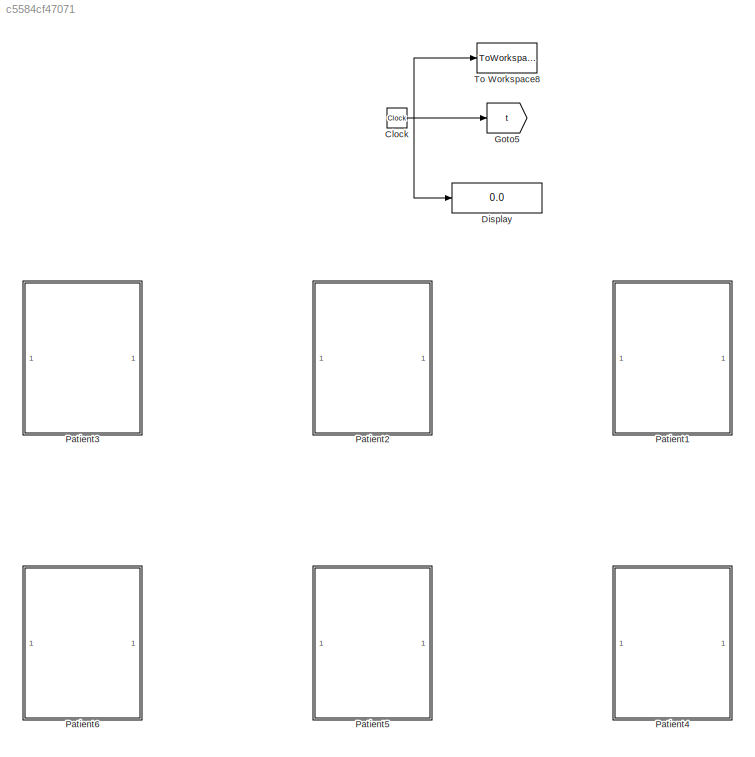
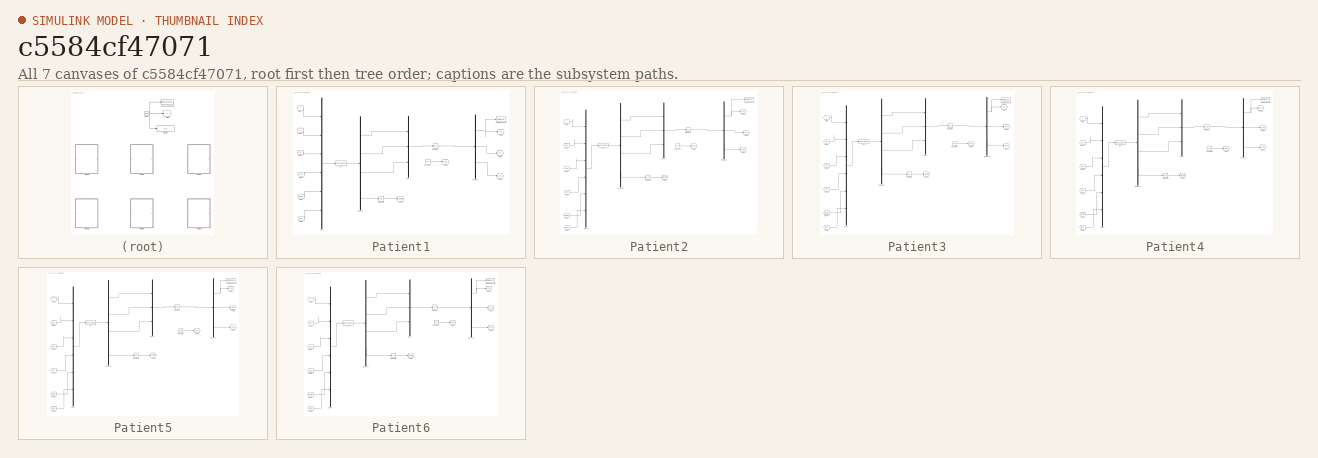
[diagram: thumbnail index - all 7 canvases of the model, root first then tree order]
MODEL slx_c5584cf47071
KIND model
CONFIG AbsTol = auto
CONFIG EnableMultiTasking = off
CONFIG FixedStep = auto
CONFIG MaxStep = auto
CONFIG MinStep = auto
CONFIG RelTol = 1e-3
CONFIG SampleTimeConstraint = Unconstrained
CONFIG SolverName = VariableStepAuto
CONFIG StartTime = 0.0
CONFIG StopTime = 90000
BLOCK [Clock] Clock
BLOCK [Display] Display
  Decimation = 1
  Ports = [1]
BLOCK [Goto] Goto5
  GotoTag = t
  TagVisibility = global
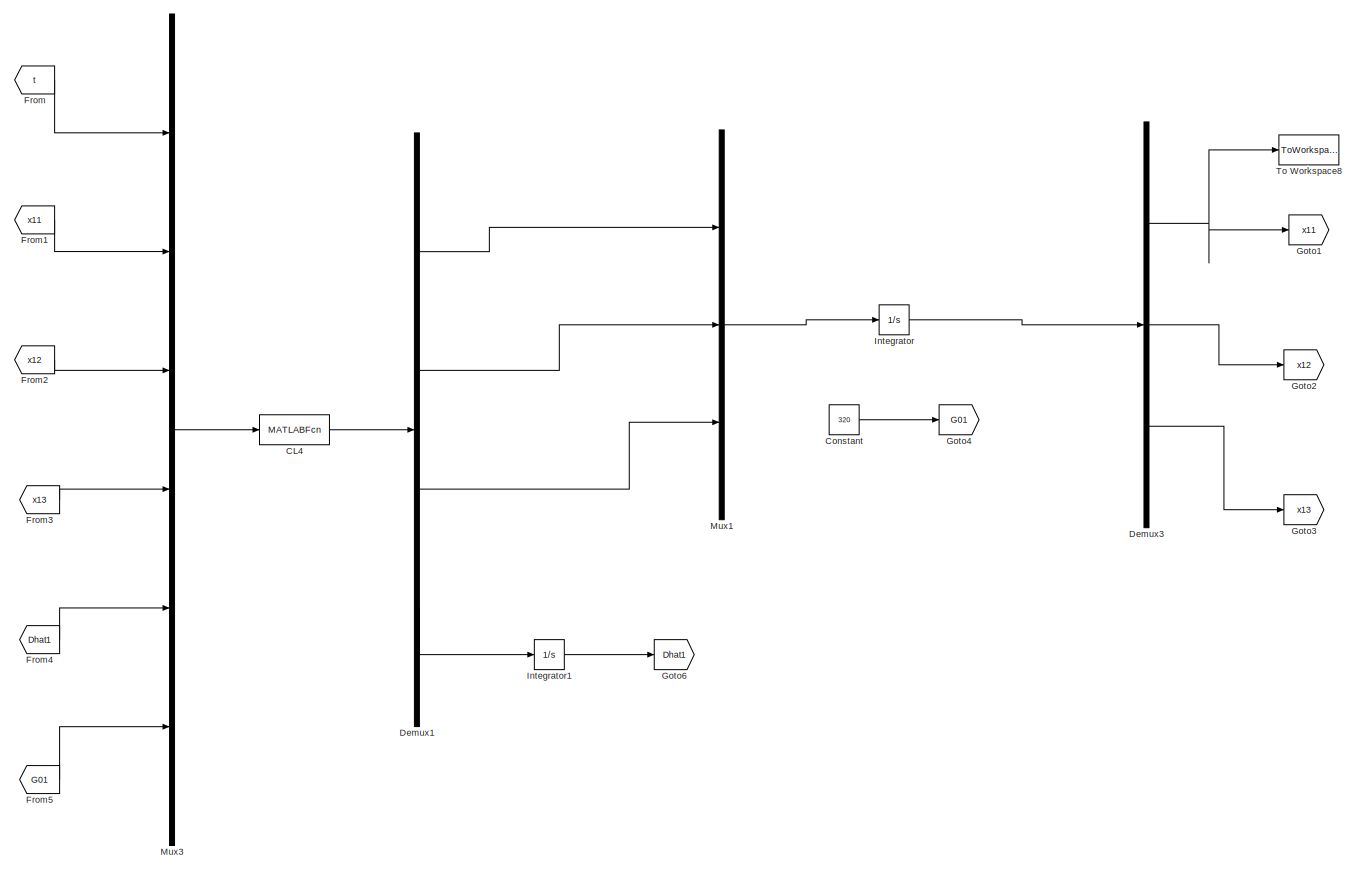
[diagram: Patient1 - part 1/1, most of the canvas]
BLOCK [SubSystem] Patient1
  Ports = []
  RequestExecContextInheritance = off
BLOCK [MATLABFcn] Patient1/CL4
  MATLABFcn = control_law4adaptive
  OutputDimensions = 4
  Ports = [1, 1]
BLOCK [Constant] Patient1/Constant
  Value = 320
BLOCK [Demux] Patient1/Demux1
  Ports = [1, 4]
BLOCK [Demux] Patient1/Demux3
  Outputs = 3
  Ports = [1, 3]
BLOCK [From] Patient1/From
  GotoTag = t
  TagVisibility = global
BLOCK [From] Patient1/From1
  GotoTag = x11
  TagVisibility = global
BLOCK [From] Patient1/From2
  GotoTag = x12
  TagVisibility = global
BLOCK [From] Patient1/From3
  GotoTag = x13
  TagVisibility = global
BLOCK [From] Patient1/From4
  GotoTag = Dhat1
  TagVisibility = global
BLOCK [From] Patient1/From5
  GotoTag = G01
  TagVisibility = global
BLOCK [Goto] Patient1/Goto1
  GotoTag = x11
  TagVisibility = global
BLOCK [Goto] Patient1/Goto2
  GotoTag = x12
  TagVisibility = global
BLOCK [Goto] Patient1/Goto3
  GotoTag = x13
  TagVisibility = global
BLOCK [Goto] Patient1/Goto4
  GotoTag = G01
  TagVisibility = global
BLOCK [Goto] Patient1/Goto6
  GotoTag = Dhat1
  TagVisibility = global
BLOCK [Integrator] Patient1/Integrator
  InitialCondition = [320;0;100]
  Ports = [1, 1]
BLOCK [Integrator] Patient1/Integrator1
  Ports = [1, 1]
BLOCK [Mux] Patient1/Mux1
  DisplayOption = bar
  Inputs = 3
  Ports = [3, 1]
BLOCK [Mux] Patient1/Mux3
  DisplayOption = bar
  Inputs = 6
  Ports = [6, 1]
BLOCK [ToWorkspace] Patient1/To Workspace8
  MaxDataPoints = inf
  Ports = [1]
  SampleTime = 10
  Save2DSignal = 2-D array (concatenate along first dimension)
  VariableName = x11
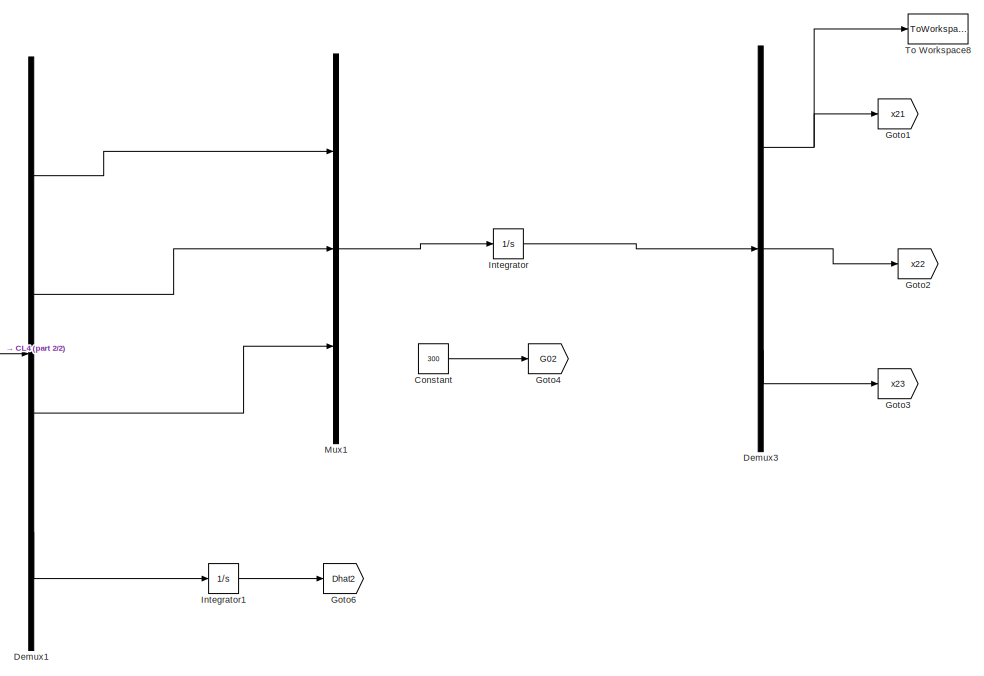
[diagram: Patient2 - part 1/2, central region]
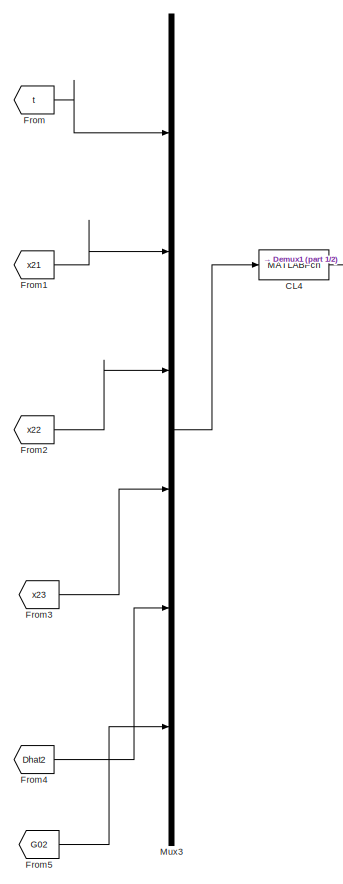
[diagram: Patient2 - part 2/2, left side, full height]
BLOCK [SubSystem] Patient2
  Ports = []
  RequestExecContextInheritance = off
BLOCK [MATLABFcn] Patient2/CL4
  MATLABFcn = control_law4adaptive
  OutputDimensions = 4
  Ports = [1, 1]
BLOCK [Constant] Patient2/Constant
  Value = 300
BLOCK [Demux] Patient2/Demux1
  Ports = [1, 4]
BLOCK [Demux] Patient2/Demux3
  Outputs = 3
  Ports = [1, 3]
BLOCK [From] Patient2/From
  GotoTag = t
  TagVisibility = global
BLOCK [From] Patient2/From1
  GotoTag = x21
  TagVisibility = global
BLOCK [From] Patient2/From2
  GotoTag = x22
  TagVisibility = global
BLOCK [From] Patient2/From3
  GotoTag = x23
  TagVisibility = global
BLOCK [From] Patient2/From4
  GotoTag = Dhat2
  TagVisibility = global
BLOCK [From] Patient2/From5
  GotoTag = G02
  TagVisibility = global
BLOCK [Goto] Patient2/Goto1
  GotoTag = x21
  TagVisibility = global
BLOCK [Goto] Patient2/Goto2
  GotoTag = x22
  TagVisibility = global
BLOCK [Goto] Patient2/Goto3
  GotoTag = x23
  TagVisibility = global
BLOCK [Goto] Patient2/Goto4
  GotoTag = G02
  TagVisibility = global
BLOCK [Goto] Patient2/Goto6
  GotoTag = Dhat2
  TagVisibility = global
BLOCK [Integrator] Patient2/Integrator
  InitialCondition = [300;0;100]
  Ports = [1, 1]
BLOCK [Integrator] Patient2/Integrator1
  Ports = [1, 1]
BLOCK [Mux] Patient2/Mux1
  DisplayOption = bar
  Inputs = 3
  Ports = [3, 1]
BLOCK [Mux] Patient2/Mux3
  DisplayOption = bar
  Inputs = 6
  Ports = [6, 1]
BLOCK [ToWorkspace] Patient2/To Workspace8
  MaxDataPoints = inf
  Ports = [1]
  SampleTime = 10
  Save2DSignal = 2-D array (concatenate along first dimension)
  VariableName = x21
BLOCK [SubSystem] Patient3
  Ports = []
  RequestExecContextInheritance = off
BLOCK [MATLABFcn] Patient3/CL4
  MATLABFcn = control_law4adaptive
  OutputDimensions = 4
  Ports = [1, 1]
BLOCK [Constant] Patient3/Constant
  Value = 270
BLOCK [Demux] Patient3/Demux1
  Ports = [1, 4]
BLOCK [Demux] Patient3/Demux3
  Outputs = 3
  Ports = [1, 3]
BLOCK [From] Patient3/From
  GotoTag = t
  TagVisibility = global
BLOCK [From] Patient3/From1
  GotoTag = x31
  TagVisibility = global
BLOCK [From] Patient3/From2
  GotoTag = x32
  TagVisibility = global
BLOCK [From] Patient3/From3
  GotoTag = x33
  TagVisibility = global
BLOCK [From] Patient3/From4
  GotoTag = Dhat3
  TagVisibility = global
BLOCK [From] Patient3/From5
  GotoTag = G03
  TagVisibility = global
BLOCK [Goto] Patient3/Goto1
  GotoTag = x31
  TagVisibility = global
BLOCK [Goto] Patient3/Goto2
  GotoTag = x32
  TagVisibility = global
BLOCK [Goto] Patient3/Goto3
  GotoTag = x33
  TagVisibility = global
BLOCK [Goto] Patient3/Goto4
  GotoTag = G03
  TagVisibility = global
BLOCK [Goto] Patient3/Goto6
  GotoTag = Dhat3
  TagVisibility = global
BLOCK [Integrator] Patient3/Integrator
  InitialCondition = [270;0;100]
  Ports = [1, 1]
BLOCK [Integrator] Patient3/Integrator1
  Ports = [1, 1]
BLOCK [Mux] Patient3/Mux1
  DisplayOption = bar
  Inputs = 3
  Ports = [3, 1]
BLOCK [Mux] Patient3/Mux3
  DisplayOption = bar
  Inputs = 6
  Ports = [6, 1]
BLOCK [ToWorkspace] Patient3/To Workspace8
  MaxDataPoints = inf
  Ports = [1]
  SampleTime = 10
  Save2DSignal = 2-D array (concatenate along first dimension)
  VariableName = x31
BLOCK [SubSystem] Patient4
  Ports = []
  RequestExecContextInheritance = off
BLOCK [MATLABFcn] Patient4/CL4
  MATLABFcn = control_law4adaptive
  OutputDimensions = 4
  Ports = [1, 1]
BLOCK [Constant] Patient4/Constant
  Value = 250
BLOCK [Demux] Patient4/Demux1
  Ports = [1, 4]
BLOCK [Demux] Patient4/Demux3
  Outputs = 3
  Ports = [1, 3]
BLOCK [From] Patient4/From
  GotoTag = t
  TagVisibility = global
BLOCK [From] Patient4/From1
  GotoTag = x41
  TagVisibility = global
BLOCK [From] Patient4/From2
  GotoTag = x42
  TagVisibility = global
BLOCK [From] Patient4/From3
  GotoTag = x43
  TagVisibility = global
BLOCK [From] Patient4/From4
  GotoTag = Dhat4
  TagVisibility = global
BLOCK [From] Patient4/From5
  GotoTag = G04
  TagVisibility = global
BLOCK [Goto] Patient4/Goto1
  GotoTag = x41
  TagVisibility = global
BLOCK [Goto] Patient4/Goto2
  GotoTag = x42
  TagVisibility = global
BLOCK [Goto] Patient4/Goto3
  GotoTag = x43
  TagVisibility = global
BLOCK [Goto] Patient4/Goto4
  GotoTag = G04
  TagVisibility = global
BLOCK [Goto] Patient4/Goto6
  GotoTag = Dhat4
  TagVisibility = global
BLOCK [Integrator] Patient4/Integrator
  InitialCondition = [250;0;100]
  Ports = [1, 1]
BLOCK [Integrator] Patient4/Integrator1
  Ports = [1, 1]
BLOCK [Mux] Patient4/Mux1
  DisplayOption = bar
  Inputs = 3
  Ports = [3, 1]
BLOCK [Mux] Patient4/Mux3
  DisplayOption = bar
  Inputs = 6
  Ports = [6, 1]
BLOCK [ToWorkspace] Patient4/To Workspace8
  MaxDataPoints = inf
  Ports = [1]
  SampleTime = 10
  Save2DSignal = 2-D array (concatenate along first dimension)
  VariableName = x41
BLOCK [SubSystem] Patient5
  Ports = []
  RequestExecContextInheritance = off
BLOCK [MATLABFcn] Patient5/CL4
  MATLABFcn = control_law4adaptive
  OutputDimensions = 4
  Ports = [1, 1]
BLOCK [Constant] Patient5/Constant
  Value = 220
BLOCK [Demux] Patient5/Demux1
  Ports = [1, 4]
BLOCK [Demux] Patient5/Demux3
  Outputs = 3
  Ports = [1, 3]
BLOCK [From] Patient5/From
  GotoTag = t
  TagVisibility = global
BLOCK [From] Patient5/From1
  GotoTag = x51
  TagVisibility = global
BLOCK [From] Patient5/From2
  GotoTag = x52
  TagVisibility = global
BLOCK [From] Patient5/From3
  GotoTag = x53
  TagVisibility = global
BLOCK [From] Patient5/From4
  GotoTag = Dhat5
  TagVisibility = global
BLOCK [From] Patient5/From5
  GotoTag = G05
  TagVisibility = global
BLOCK [Goto] Patient5/Goto1
  GotoTag = x51
  TagVisibility = global
BLOCK [Goto] Patient5/Goto2
  GotoTag = x52
  TagVisibility = global
BLOCK [Goto] Patient5/Goto3
  GotoTag = x53
  TagVisibility = global
BLOCK [Goto] Patient5/Goto4
  GotoTag = G05
  TagVisibility = global
BLOCK [Goto] Patient5/Goto6
  GotoTag = Dhat5
  TagVisibility = global
BLOCK [Integrator] Patient5/Integrator
  InitialCondition = [220;0;100]
  Ports = [1, 1]
BLOCK [Integrator] Patient5/Integrator1
  Ports = [1, 1]
BLOCK [Mux] Patient5/Mux1
  DisplayOption = bar
  Inputs = 3
  Ports = [3, 1]
BLOCK [Mux] Patient5/Mux3
  DisplayOption = bar
  Inputs = 6
  Ports = [6, 1]
BLOCK [ToWorkspace] Patient5/To Workspace8
  MaxDataPoints = inf
  Ports = [1]
  SampleTime = 10
  Save2DSignal = 2-D array (concatenate along first dimension)
  VariableName = x51
BLOCK [SubSystem] Patient6
  Ports = []
  RequestExecContextInheritance = off
BLOCK [MATLABFcn] Patient6/CL4
  MATLABFcn = control_law4adaptive
  OutputDimensions = 4
  Ports = [1, 1]
BLOCK [Constant] Patient6/Constant
  Value = 180
BLOCK [Demux] Patient6/Demux1
  Ports = [1, 4]
BLOCK [Demux] Patient6/Demux3
  Outputs = 3
  Ports = [1, 3]
BLOCK [From] Patient6/From
  GotoTag = t
  TagVisibility = global
BLOCK [From] Patient6/From1
  GotoTag = x61
  TagVisibility = global
BLOCK [From] Patient6/From2
  GotoTag = x62
  TagVisibility = global
BLOCK [From] Patient6/From3
  GotoTag = x63
  TagVisibility = global
BLOCK [From] Patient6/From4
  GotoTag = Dhat6
  TagVisibility = global
BLOCK [From] Patient6/From5
  GotoTag = G06
  TagVisibility = global
BLOCK [Goto] Patient6/Goto1
  GotoTag = x61
  TagVisibility = global
BLOCK [Goto] Patient6/Goto2
  GotoTag = x62
  TagVisibility = global
BLOCK [Goto] Patient6/Goto3
  GotoTag = x63
  TagVisibility = global
BLOCK [Goto] Patient6/Goto4
  GotoTag = G06
  TagVisibility = global
BLOCK [Goto] Patient6/Goto6
  GotoTag = Dhat6
  TagVisibility = global
BLOCK [Integrator] Patient6/Integrator
  InitialCondition = [180;0;100]
  Ports = [1, 1]
BLOCK [Integrator] Patient6/Integrator1
  Ports = [1, 1]
BLOCK [Mux] Patient6/Mux1
  DisplayOption = bar
  Inputs = 3
  Ports = [3, 1]
BLOCK [Mux] Patient6/Mux3
  DisplayOption = bar
  Inputs = 6
  Ports = [6, 1]
BLOCK [ToWorkspace] Patient6/To Workspace8
  MaxDataPoints = inf
  Ports = [1]
  SampleTime = 10
  Save2DSignal = 2-D array (concatenate along first dimension)
  VariableName = x61
BLOCK [ToWorkspace] To Workspace8
  MaxDataPoints = inf
  Ports = [1]
  SampleTime = 10
  Save2DSignal = 2-D array (concatenate along first dimension)
  VariableName = t
NET Clock:1 -> Display:1, Goto5:1, To Workspace8:1
LINE Patient1/CL4:1 -> Patient1/Demux1:1
LINE Patient1/Constant:1 -> Patient1/Goto4:1
LINE Patient1/Demux1:1 -> Patient1/Mux1:1
LINE Patient1/Demux1:2 -> Patient1/Mux1:2
LINE Patient1/Demux1:3 -> Patient1/Mux1:3
LINE Patient1/Demux1:4 -> Patient1/Integrator1:1
NET Patient1/Demux3:1 -> Patient1/Goto1:1, Patient1/To Workspace8:1
LINE Patient1/Demux3:2 -> Patient1/Goto2:1
LINE Patient1/Demux3:3 -> Patient1/Goto3:1
LINE Patient1/From1:1 -> Patient1/Mux3:2
LINE Patient1/From2:1 -> Patient1/Mux3:3
LINE Patient1/From3:1 -> Patient1/Mux3:4
LINE Patient1/From4:1 -> Patient1/Mux3:5
LINE Patient1/From5:1 -> Patient1/Mux3:6
LINE Patient1/From:1 -> Patient1/Mux3:1
LINE Patient1/Integrator1:1 -> Patient1/Goto6:1
LINE Patient1/Integrator:1 -> Patient1/Demux3:1
LINE Patient1/Mux1:1 -> Patient1/Integrator:1
LINE Patient1/Mux3:1 -> Patient1/CL4:1
LINE Patient2/CL4:1 -> Patient2/Demux1:1
LINE Patient2/Constant:1 -> Patient2/Goto4:1
LINE Patient2/Demux1:1 -> Patient2/Mux1:1
LINE Patient2/Demux1:2 -> Patient2/Mux1:2
LINE Patient2/Demux1:3 -> Patient2/Mux1:3
LINE Patient2/Demux1:4 -> Patient2/Integrator1:1
NET Patient2/Demux3:1 -> Patient2/Goto1:1, Patient2/To Workspace8:1
LINE Patient2/Demux3:2 -> Patient2/Goto2:1
LINE Patient2/Demux3:3 -> Patient2/Goto3:1
LINE Patient2/From1:1 -> Patient2/Mux3:2
LINE Patient2/From2:1 -> Patient2/Mux3:3
LINE Patient2/From3:1 -> Patient2/Mux3:4
LINE Patient2/From4:1 -> Patient2/Mux3:5
LINE Patient2/From5:1 -> Patient2/Mux3:6
LINE Patient2/From:1 -> Patient2/Mux3:1
LINE Patient2/Integrator1:1 -> Patient2/Goto6:1
LINE Patient2/Integrator:1 -> Patient2/Demux3:1
LINE Patient2/Mux1:1 -> Patient2/Integrator:1
LINE Patient2/Mux3:1 -> Patient2/CL4:1
LINE Patient3/CL4:1 -> Patient3/Demux1:1
LINE Patient3/Constant:1 -> Patient3/Goto4:1
LINE Patient3/Demux1:1 -> Patient3/Mux1:1
LINE Patient3/Demux1:2 -> Patient3/Mux1:2
LINE Patient3/Demux1:3 -> Patient3/Mux1:3
LINE Patient3/Demux1:4 -> Patient3/Integrator1:1
NET Patient3/Demux3:1 -> Patient3/Goto1:1, Patient3/To Workspace8:1
LINE Patient3/Demux3:2 -> Patient3/Goto2:1
LINE Patient3/Demux3:3 -> Patient3/Goto3:1
LINE Patient3/From1:1 -> Patient3/Mux3:2
LINE Patient3/From2:1 -> Patient3/Mux3:3
LINE Patient3/From3:1 -> Patient3/Mux3:4
LINE Patient3/From4:1 -> Patient3/Mux3:5
LINE Patient3/From5:1 -> Patient3/Mux3:6
LINE Patient3/From:1 -> Patient3/Mux3:1
LINE Patient3/Integrator1:1 -> Patient3/Goto6:1
LINE Patient3/Integrator:1 -> Patient3/Demux3:1
LINE Patient3/Mux1:1 -> Patient3/Integrator:1
LINE Patient3/Mux3:1 -> Patient3/CL4:1
LINE Patient4/CL4:1 -> Patient4/Demux1:1
LINE Patient4/Constant:1 -> Patient4/Goto4:1
LINE Patient4/Demux1:1 -> Patient4/Mux1:1
LINE Patient4/Demux1:2 -> Patient4/Mux1:2
LINE Patient4/Demux1:3 -> Patient4/Mux1:3
LINE Patient4/Demux1:4 -> Patient4/Integrator1:1
NET Patient4/Demux3:1 -> Patient4/Goto1:1, Patient4/To Workspace8:1
LINE Patient4/Demux3:2 -> Patient4/Goto2:1
LINE Patient4/Demux3:3 -> Patient4/Goto3:1
LINE Patient4/From1:1 -> Patient4/Mux3:2
LINE Patient4/From2:1 -> Patient4/Mux3:3
LINE Patient4/From3:1 -> Patient4/Mux3:4
LINE Patient4/From4:1 -> Patient4/Mux3:5
LINE Patient4/From5:1 -> Patient4/Mux3:6
LINE Patient4/From:1 -> Patient4/Mux3:1
LINE Patient4/Integrator1:1 -> Patient4/Goto6:1
LINE Patient4/Integrator:1 -> Patient4/Demux3:1
LINE Patient4/Mux1:1 -> Patient4/Integrator:1
LINE Patient4/Mux3:1 -> Patient4/CL4:1
LINE Patient5/CL4:1 -> Patient5/Demux1:1
LINE Patient5/Constant:1 -> Patient5/Goto4:1
LINE Patient5/Demux1:1 -> Patient5/Mux1:1
LINE Patient5/Demux1:2 -> Patient5/Mux1:2
LINE Patient5/Demux1:3 -> Patient5/Mux1:3
LINE Patient5/Demux1:4 -> Patient5/Integrator1:1
NET Patient5/Demux3:1 -> Patient5/Goto1:1, Patient5/To Workspace8:1
LINE Patient5/Demux3:2 -> Patient5/Goto2:1
LINE Patient5/Demux3:3 -> Patient5/Goto3:1
LINE Patient5/From1:1 -> Patient5/Mux3:2
LINE Patient5/From2:1 -> Patient5/Mux3:3
LINE Patient5/From3:1 -> Patient5/Mux3:4
LINE Patient5/From4:1 -> Patient5/Mux3:5
LINE Patient5/From5:1 -> Patient5/Mux3:6
LINE Patient5/From:1 -> Patient5/Mux3:1
LINE Patient5/Integrator1:1 -> Patient5/Goto6:1
LINE Patient5/Integrator:1 -> Patient5/Demux3:1
LINE Patient5/Mux1:1 -> Patient5/Integrator:1
LINE Patient5/Mux3:1 -> Patient5/CL4:1
LINE Patient6/CL4:1 -> Patient6/Demux1:1
LINE Patient6/Constant:1 -> Patient6/Goto4:1
LINE Patient6/Demux1:1 -> Patient6/Mux1:1
LINE Patient6/Demux1:2 -> Patient6/Mux1:2
LINE Patient6/Demux1:3 -> Patient6/Mux1:3
LINE Patient6/Demux1:4 -> Patient6/Integrator1:1
NET Patient6/Demux3:1 -> Patient6/Goto1:1, Patient6/To Workspace8:1
LINE Patient6/Demux3:2 -> Patient6/Goto2:1
LINE Patient6/Demux3:3 -> Patient6/Goto3:1
LINE Patient6/From1:1 -> Patient6/Mux3:2
LINE Patient6/From2:1 -> Patient6/Mux3:3
LINE Patient6/From3:1 -> Patient6/Mux3:4
LINE Patient6/From4:1 -> Patient6/Mux3:5
LINE Patient6/From5:1 -> Patient6/Mux3:6
LINE Patient6/From:1 -> Patient6/Mux3:1
LINE Patient6/Integrator1:1 -> Patient6/Goto6:1
LINE Patient6/Integrator:1 -> Patient6/Demux3:1
LINE Patient6/Mux1:1 -> Patient6/Integrator:1
LINE Patient6/Mux3:1 -> Patient6/CL4:1
note: NET lines group one-source signal fan-out (src -> all destinations, sorted); 1:1 wires keep LINE
